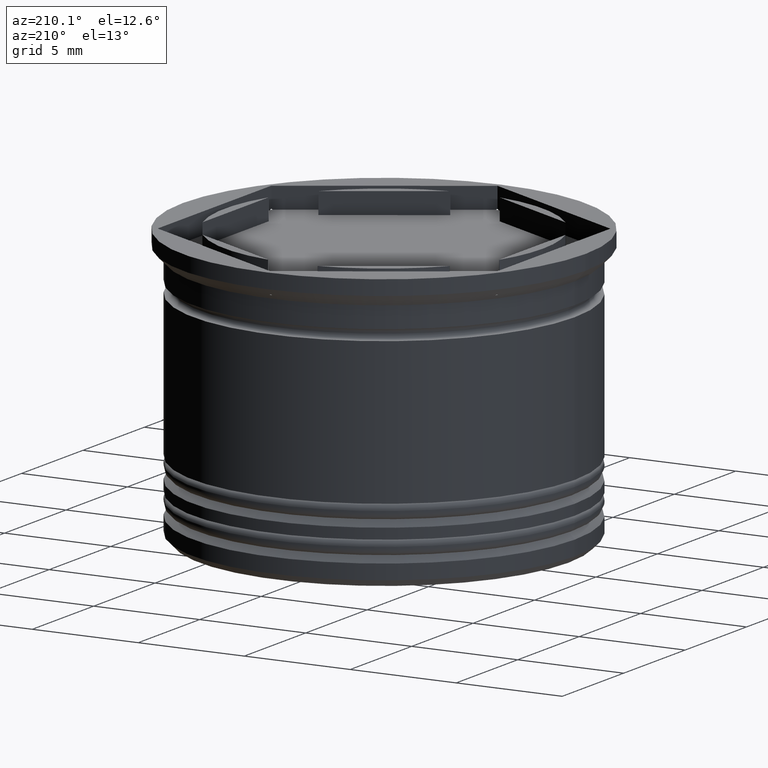
[diagram: clean part render]
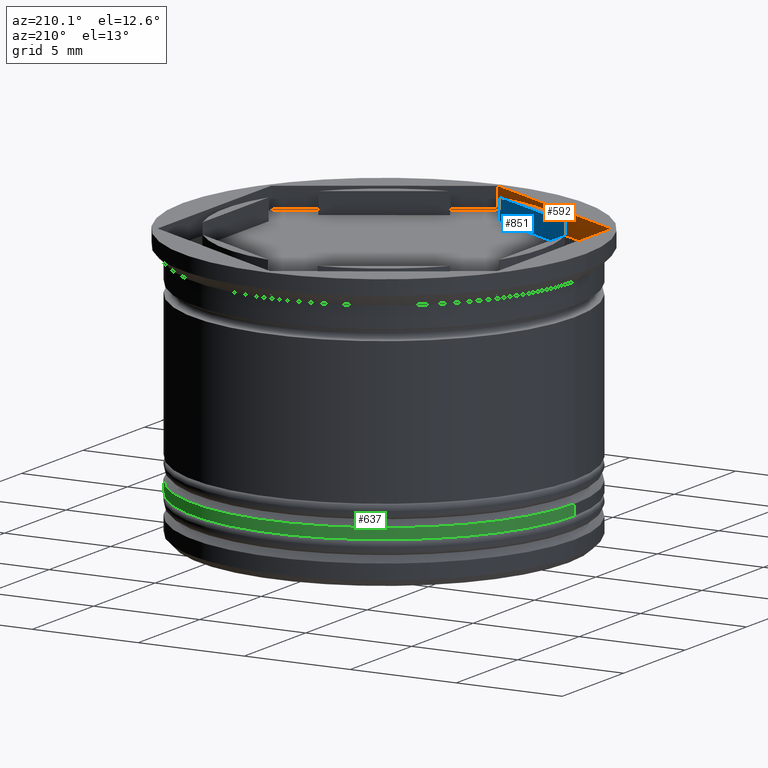
[diagram: same view with three faces highlighted in distinct colors, each labeled with its STEP entity id]
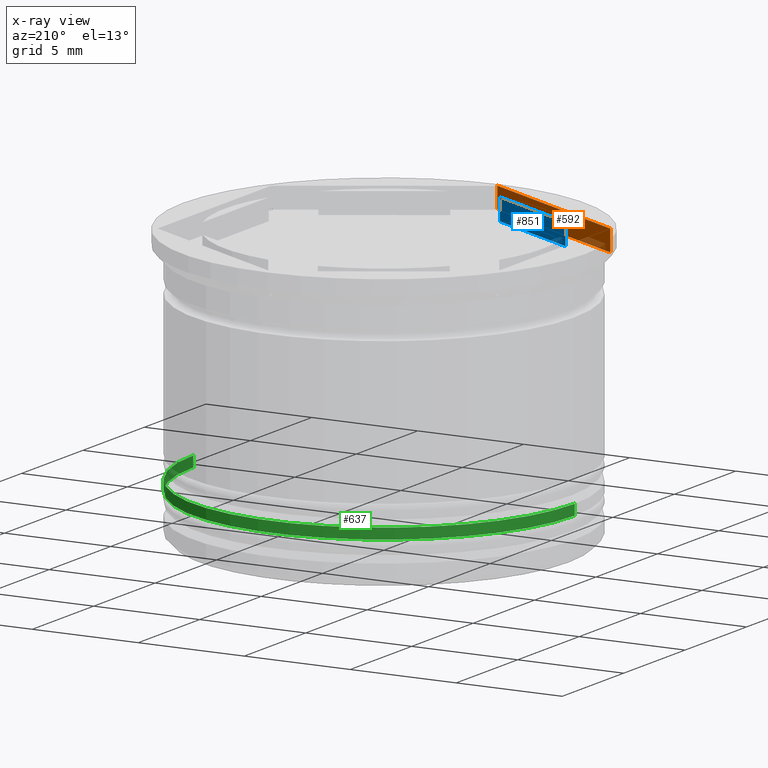
[diagram: x-ray of the same camera — body ghosted, the three highlighted faces saturated]
A machine part, auxiliary view with three faces highlighted in distinct colors.
The next image is the same camera in x-ray (body ghosted, the three faces saturated) — at least one of them is partly hidden behind the body in this view.
Their STEP definitions:

[orange] entity #592 — the highlighted planar face has unit normal (-0.5, -0.866, 0).
#34 = DIRECTION ( 'NONE',  ( -0.000000000000000000, -0.000000000000000000, 1.000000000000000000 ) ) ;
#67 = LINE ( 'NONE', #1572, #1225 ) ;
#76 = DIRECTION ( 'NONE',  ( 0.8660254037844387076, -0.4999999999999997780, 0.000000000000000000 ) ) ;
#133 = ORIENTED_EDGE ( 'NONE', *, *, #576, .F. ) ;
#180 = VERTEX_POINT ( 'NONE', #573 ) ;
#197 = CARTESIAN_POINT ( 'NONE',  ( -0.06553688541881264040, -9.199766568595613592, -1.000000000000000000 ) ) ;
#339 = ORIENTED_EDGE ( 'NONE', *, *, #1655, .F. ) ;
#343 = CARTESIAN_POINT ( 'NONE',  ( -7.934463114581185472, -4.656639891955411947, -1.000000000000000000 ) ) ;
#401 = CARTESIAN_POINT ( 'NONE',  ( -7.934463114581185472, -4.656639891955411947, -1.000000000000000000 ) ) ;
#424 = LINE ( 'NONE', #581, #561 ) ;
#426 = EDGE_CURVE ( 'NONE', #514, #180, #1036, .T. ) ;
#435 = VERTEX_POINT ( 'NONE', #1519 ) ;
#514 = VERTEX_POINT ( 'NONE', #1288 ) ;
#531 = VECTOR ( 'NONE', #34, 1000.000000000000000 ) ;
#561 = VECTOR ( 'NONE', #1281, 1000.000000000000114 ) ;
#571 = LINE ( 'NONE', #1139, #1702 ) ;
#573 = CARTESIAN_POINT ( 'NONE',  ( -0.06553688541881264040, -9.199766568595613592, -1.000000000000000000 ) ) ;
#576 = EDGE_CURVE ( 'NONE', #514, #1079, #571, .T. ) ;
#581 = CARTESIAN_POINT ( 'NONE',  ( -8.000000000000001776, -4.618802153517008513, 0.000000000000000000 ) ) ;
#592 = ADVANCED_FACE ( 'NONE', ( #632 ), #1061, .F. ) ;
#632 = FACE_OUTER_BOUND ( 'NONE', #1180, .T. ) ;
#775 = DIRECTION ( 'NONE',  ( 0.8660254037844387076, -0.4999999999999997224, 0.000000000000000000 ) ) ;
#807 = VERTEX_POINT ( 'NONE', #1205 ) ;
#952 = DIRECTION ( 'NONE',  ( -0.4999999999999997780, -0.8660254037844388186, 0.000000000000000000 ) ) ;
#996 = ORIENTED_EDGE ( 'NONE', *, *, #1931, .T. ) ;
#1028 = CARTESIAN_POINT ( 'NONE',  ( -0.04366765646181458571, -9.212392773820903713, -0.9875299022209247379 ) ) ;
#1036 = B_SPLINE_CURVE_WITH_KNOTS ( 'NONE', 3,
 ( #1853, #1695, #1028, #197 ),
 .UNSPECIFIED., .F., .F.,
 ( 4, 4 ),
 ( 0.007762847774097424852, 0.007847249573105900128 ),
 .UNSPECIFIED. ) ;
#1049 = LINE ( 'NONE', #1890, #531 ) ;
#1061 = PLANE ( 'NONE',  #1949 ) ;
#1079 = VERTEX_POINT ( 'NONE', #1453 ) ;
#1099 = VERTEX_POINT ( 'NONE', #343 ) ;
#1136 = B_SPLINE_CURVE_WITH_KNOTS ( 'NONE', 3,
 ( #401, #1416, #1732, #2089 ),
 .UNSPECIFIED., .F., .F.,
 ( 4, 4 ),
 ( 0.01731411986074076967, 0.01739897956393649317 ),
 .UNSPECIFIED. ) ;
#1139 = CARTESIAN_POINT ( 'NONE',  ( 8.334195073742550113E-16, -9.237604307034013473, -1.000000000000000000 ) ) ;
#1180 = EDGE_LOOP ( 'NONE', ( #1608, #339, #1767, #996, #1795, #133 ) ) ;
#1205 = CARTESIAN_POINT ( 'NONE',  ( -8.000000000000001776, -4.618802153517008513, -0.9623956929659794879 ) ) ;
#1225 = VECTOR ( 'NONE', #76, 1000.000000000000114 ) ;
#1281 = DIRECTION ( 'NONE',  ( 0.8660254037844387076, -0.4999999999999997780, 0.000000000000000000 ) ) ;
#1288 = CARTESIAN_POINT ( 'NONE',  ( 8.334195073742550113E-16, -9.237604307034013473, -0.9623956929659817083 ) ) ;
#1416 = CARTESIAN_POINT ( 'NONE',  ( -7.956341066678156437, -4.644008650422907003, -0.9875249281815708935 ) ) ;
#1453 = CARTESIAN_POINT ( 'NONE',  ( 8.334195073742550113E-16, -9.237604307034013473, 0.000000000000000000 ) ) ;
#1519 = CARTESIAN_POINT ( 'NONE',  ( -8.000000000000001776, -4.618802153517008513, 0.000000000000000000 ) ) ;
#1572 = CARTESIAN_POINT ( 'NONE',  ( -8.000000000000001776, -4.618802153517008513, -1.000000000000000000 ) ) ;
#1608 = ORIENTED_EDGE ( 'NONE', *, *, #426, .T. ) ;
#1655 = EDGE_CURVE ( 'NONE', #1099, #180, #67, .T. ) ;
#1687 = EDGE_CURVE ( 'NONE', #1099, #807, #1136, .T. ) ;
#1695 = CARTESIAN_POINT ( 'NONE',  ( -0.02182217463400837332, -9.225005268634765443, -0.9749947313652292946 ) ) ;
#1702 = VECTOR ( 'NONE', #2137, 1000.000000000000000 ) ;
#1732 = CARTESIAN_POINT ( 'NONE',  ( -7.978186468777201057, -4.631396201640469279, -0.9749897410894450278 ) ) ;
#1735 = CARTESIAN_POINT ( 'NONE',  ( -8.000000000000001776, -4.618802153517008513, -1.000000000000000000 ) ) ;
#1767 = ORIENTED_EDGE ( 'NONE', *, *, #1687, .T. ) ;
#1795 = ORIENTED_EDGE ( 'NONE', *, *, #2052, .T. ) ;
#1853 = CARTESIAN_POINT ( 'NONE',  ( 8.334195073742550113E-16, -9.237604307034013473, -0.9623956929659817083 ) ) ;
#1890 = CARTESIAN_POINT ( 'NONE',  ( -8.000000000000001776, -4.618802153517008513, -1.000000000000000000 ) ) ;
#1931 = EDGE_CURVE ( 'NONE', #807, #435, #1049, .T. ) ;
#1949 = AXIS2_PLACEMENT_3D ( 'NONE', #1735, #952, #775 ) ;
#2052 = EDGE_CURVE ( 'NONE', #435, #1079, #424, .T. ) ;
#2089 = CARTESIAN_POINT ( 'NONE',  ( -8.000000000000001776, -4.618802153517008513, -0.9623956929659794879 ) ) ;
#2137 = DIRECTION ( 'NONE',  ( -0.000000000000000000, -0.000000000000000000, 1.000000000000000000 ) ) ;

[blue] entity #851 — the highlighted planar face has unit normal (-0.5, -0.866, 0).
#16 = DIRECTION ( 'NONE',  ( -0.000000000000000000, -0.000000000000000000, -1.000000000000000000 ) ) ;
#18 = VERTEX_POINT ( 'NONE', #673 ) ;
#48 = VECTOR ( 'NONE', #533, 1000.000000000000000 ) ;
#88 = AXIS2_PLACEMENT_3D ( 'NONE', #1283, #597, #2110 ) ;
#101 = CARTESIAN_POINT ( 'NONE',  ( -1.168155236727794533, -7.408469028274696555, -1.000000000000000888 ) ) ;
#112 = DIRECTION ( 'NONE',  ( -0.8660254037844385966, 0.4999999999999999445, 0.000000000000000000 ) ) ;
#190 = VERTEX_POINT ( 'NONE', #900 ) ;
#215 = LINE ( 'NONE', #1527, #1679 ) ;
#255 = FACE_OUTER_BOUND ( 'NONE', #826, .T. ) ;
#264 = VERTEX_POINT ( 'NONE', #735 ) ;
#452 = EDGE_CURVE ( 'NONE', #530, #190, #2014, .T. ) ;
#530 = VERTEX_POINT ( 'NONE', #101 ) ;
#533 = DIRECTION ( 'NONE',  ( 0.000000000000000000, 0.000000000000000000, 1.000000000000000000 ) ) ;
#597 = DIRECTION ( 'NONE',  ( -0.5000000000000000000, -0.8660254037844387076, 0.000000000000000000 ) ) ;
#605 = EDGE_CURVE ( 'NONE', #530, #264, #1275, .T. ) ;
#673 = CARTESIAN_POINT ( 'NONE',  ( -5.831844763272202137, -4.715886624707443353, 0.000000000000000000 ) ) ;
#735 = CARTESIAN_POINT ( 'NONE',  ( -5.831844763272204801, -4.715886624707443353, -1.000000000000000888 ) ) ;
#826 = EDGE_LOOP ( 'NONE', ( #1463, #1969, #2051, #1868 ) ) ;
#851 = ADVANCED_FACE ( 'NONE', ( #255 ), #1601, .F. ) ;
#900 = CARTESIAN_POINT ( 'NONE',  ( -1.168155236727797641, -7.408469028274693891, 0.000000000000000000 ) ) ;
#1044 = EDGE_CURVE ( 'NONE', #18, #190, #1106, .T. ) ;
#1106 = LINE ( 'NONE', #1951, #1705 ) ;
#1219 = VECTOR ( 'NONE', #112, 1000.000000000000114 ) ;
#1275 = LINE ( 'NONE', #1617, #1219 ) ;
#1283 = CARTESIAN_POINT ( 'NONE',  ( -6.999999999999999112, -4.041451884327379673, -22.38535324312725194 ) ) ;
#1463 = ORIENTED_EDGE ( 'NONE', *, *, #1044, .T. ) ;
#1526 = EDGE_CURVE ( 'NONE', #18, #264, #215, .T. ) ;
#1527 = CARTESIAN_POINT ( 'NONE',  ( -5.831844763272202137, -4.715886624707444241, 21.21320343559642652 ) ) ;
#1541 = CARTESIAN_POINT ( 'NONE',  ( -1.168155236727796753, -7.408469028274695667, 21.21320343559642652 ) ) ;
#1601 = PLANE ( 'NONE',  #88 ) ;
#1617 = CARTESIAN_POINT ( 'NONE',  ( -6.999999999999999112, -4.041451884327379673, -1.000000000000000888 ) ) ;
#1679 = VECTOR ( 'NONE', #16, 1000.000000000000000 ) ;
#1705 = VECTOR ( 'NONE', #1753, 1000.000000000000114 ) ;
#1753 = DIRECTION ( 'NONE',  ( 0.8660254037844385966, -0.4999999999999999445, 0.000000000000000000 ) ) ;
#1868 = ORIENTED_EDGE ( 'NONE', *, *, #1526, .F. ) ;
#1951 = CARTESIAN_POINT ( 'NONE',  ( -3.499999999999999556, -6.062177826491070398, 0.000000000000000000 ) ) ;
#1969 = ORIENTED_EDGE ( 'NONE', *, *, #452, .F. ) ;
#2014 = LINE ( 'NONE', #1541, #48 ) ;
#2051 = ORIENTED_EDGE ( 'NONE', *, *, #605, .T. ) ;
#2110 = DIRECTION ( 'NONE',  ( 0.8660254037844385966, -0.4999999999999999445, 0.000000000000000000 ) ) ;

[green] entity #637 — the highlighted cylindrical surface (partial cylindrical patch) has radius 9 mm, axis along (-0, -0, 1).
#36 = CARTESIAN_POINT ( 'NONE',  ( -9.000000000000001776, 1.102182119232617911E-15, -10.50000000000000355 ) ) ;
#60 = DIRECTION ( 'NONE',  ( 0.000000000000000000, 0.000000000000000000, -1.000000000000000000 ) ) ;
#73 = VERTEX_POINT ( 'NONE', #1888 ) ;
#166 = EDGE_CURVE ( 'NONE', #1536, #875, #1391, .T. ) ;
#184 = CARTESIAN_POINT ( 'NONE',  ( -9.000000000000001776, 1.102182119232617911E-15, 0.000000000000000000 ) ) ;
#238 = VECTOR ( 'NONE', #2030, 1000.000000000000000 ) ;
#265 = CARTESIAN_POINT ( 'NONE',  ( 9.000000000000001776, 0.000000000000000000, -10.50000000000000355 ) ) ;
#584 = AXIS2_PLACEMENT_3D ( 'NONE', #1892, #653, #1338 ) ;
#594 = CIRCLE ( 'NONE', #1334, 9.000000000000001776 ) ;
#637 = ADVANCED_FACE ( 'NONE', ( #2059 ), #1231, .T. ) ;
#653 = DIRECTION ( 'NONE',  ( -0.000000000000000000, -0.000000000000000000, 1.000000000000000000 ) ) ;
#657 = AXIS2_PLACEMENT_3D ( 'NONE', #1105, #60, #1411 ) ;
#712 = CARTESIAN_POINT ( 'NONE',  ( 9.000000000000001776, 0.000000000000000000, 0.000000000000000000 ) ) ;
#748 = ORIENTED_EDGE ( 'NONE', *, *, #166, .T. ) ;
#770 = EDGE_CURVE ( 'NONE', #1640, #1536, #2010, .T. ) ;
#860 = ORIENTED_EDGE ( 'NONE', *, *, #2097, .T. ) ;
#875 = VERTEX_POINT ( 'NONE', #265 ) ;
#907 = CARTESIAN_POINT ( 'NONE',  ( -9.000000000000001776, 1.102182119232617911E-15, -11.00000000000000000 ) ) ;
#1033 = ORIENTED_EDGE ( 'NONE', *, *, #770, .T. ) ;
#1105 = CARTESIAN_POINT ( 'NONE',  ( 0.000000000000000000, 0.000000000000000000, -10.50000000000000355 ) ) ;
#1118 = EDGE_CURVE ( 'NONE', #73, #875, #1218, .T. ) ;
#1218 = LINE ( 'NONE', #712, #238 ) ;
#1231 = CYLINDRICAL_SURFACE ( 'NONE', #584, 9.000000000000001776 ) ;
#1334 = AXIS2_PLACEMENT_3D ( 'NONE', #1577, #1762, #1443 ) ;
#1338 = DIRECTION ( 'NONE',  ( 1.000000000000000000, 0.000000000000000000, 0.000000000000000000 ) ) ;
#1391 = CIRCLE ( 'NONE', #657, 9.000000000000001776 ) ;
#1411 = DIRECTION ( 'NONE',  ( -1.000000000000000000, 0.000000000000000000, 0.000000000000000000 ) ) ;
#1443 = DIRECTION ( 'NONE',  ( 1.000000000000000000, 0.000000000000000000, 0.000000000000000000 ) ) ;
#1481 = EDGE_LOOP ( 'NONE', ( #860, #1033, #748, #1520 ) ) ;
#1520 = ORIENTED_EDGE ( 'NONE', *, *, #1118, .F. ) ;
#1536 = VERTEX_POINT ( 'NONE', #36 ) ;
#1563 = VECTOR ( 'NONE', #1638, 1000.000000000000000 ) ;
#1577 = CARTESIAN_POINT ( 'NONE',  ( 0.000000000000000000, 0.000000000000000000, -11.00000000000000000 ) ) ;
#1638 = DIRECTION ( 'NONE',  ( -0.000000000000000000, -0.000000000000000000, 1.000000000000000000 ) ) ;
#1640 = VERTEX_POINT ( 'NONE', #907 ) ;
#1762 = DIRECTION ( 'NONE',  ( -0.000000000000000000, -0.000000000000000000, 1.000000000000000000 ) ) ;
#1888 = CARTESIAN_POINT ( 'NONE',  ( 9.000000000000001776, 0.000000000000000000, -11.00000000000000000 ) ) ;
#1892 = CARTESIAN_POINT ( 'NONE',  ( 0.000000000000000000, 0.000000000000000000, 0.000000000000000000 ) ) ;
#2010 = LINE ( 'NONE', #184, #1563 ) ;
#2030 = DIRECTION ( 'NONE',  ( -0.000000000000000000, -0.000000000000000000, 1.000000000000000000 ) ) ;
#2059 = FACE_OUTER_BOUND ( 'NONE', #1481, .T. ) ;
#2097 = EDGE_CURVE ( 'NONE', #73, #1640, #594, .T. ) ;